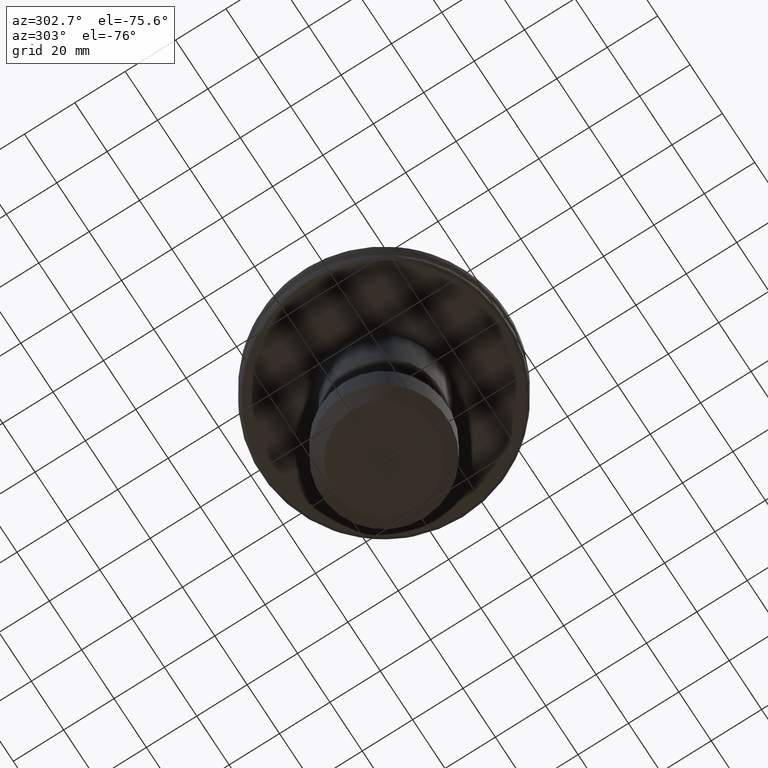
[diagram: clean part render]
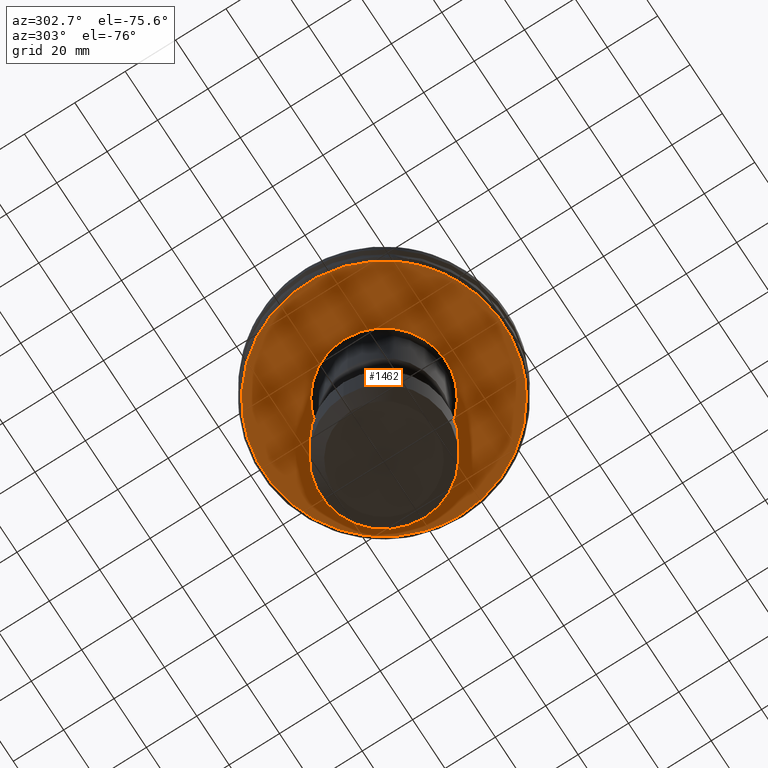
[diagram: same view with one face highlighted and labeled with its STEP entity id]
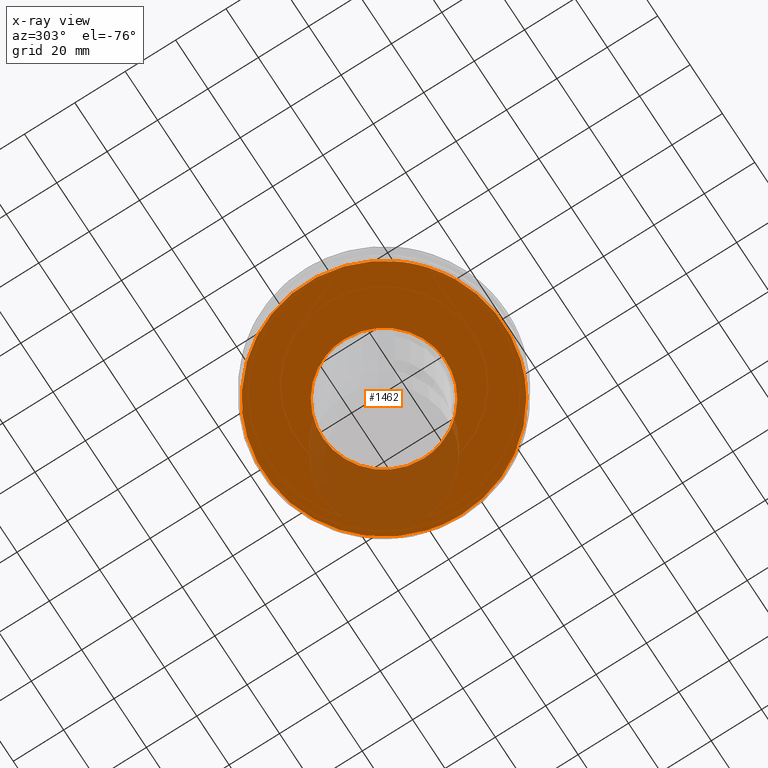
[diagram: x-ray of the same camera — body ghosted, the highlighted face saturated]
A machine part, auxiliary view. The second image highlights one B-rep face of the part: STEP entity #1462.
The next image is the same camera in x-ray: the body ghosted, the highlighted face saturated — about 20% of this face is hidden behind the body in this view.
In plain terms, the highlighted planar face has unit normal (0, 0, -1).
Its self-contained STEP definition (entity closure, byte-faithful):
#2 = CARTESIAN_POINT ( 'NONE',  ( -43.48387235241212100, 19.32416758564961200, -19.10000000000000500 ) ) ;
#25 = CARTESIAN_POINT ( 'NONE',  ( 13.55000000000003800, 45.61430141498812000, -19.10000000000000500 ) ) ;
#29 = CARTESIAN_POINT ( 'NONE',  ( -23.94644880571910800, -5.239225600082368000, -19.10000000000000500 ) ) ;
#47 = B_SPLINE_CURVE_WITH_KNOTS ( 'NONE', 3,
 ( #904, #72, #468, #954, #1856, #189, #2100, #460, #600, #2514, #1832, #132, #96, #139, #1366, #55, #1135, #964, #2860, #3375, #662, #1578, #2874, #1447, #3289, #586, #181, #173, #2288, #2808, #1193, #1045, #414, #403, #2357, #1804, #169, #1239, #1002, #2895, #1468, #1357, #2143, #1958, #1939, #294, #1148, #930, #2820, #50, #1768, #130, #1204, #2220, #2750 ),
 .UNSPECIFIED., .F., .F.,
 ( 4, 1, 1, 1, 1, 1, 2, 2, 1, 1, 1, 1, 2, 2, 1, 1, 1, 2, 2, 2, 1, 1, 1, 1, 2, 2, 1, 1, 1, 1, 2, 2, 1, 1, 1, 1, 1, 2, 2, 4 ),
 ( 0.0000000000000000000, 0.06250000000000587000, 0.09375000000000874300, 0.1093750000000101900, 0.1171875000000109800, 0.1210937500000113100, 0.1230468750000113100, 0.1250000000000113000, 0.1875000000000101300, 0.2187500000000096300, 0.2343750000000094600, 0.2421875000000094100, 0.2460937500000091900, 0.2500000000000089400, 0.3125000000000046600, 0.3437500000000025500, 0.3593750000000016100, 0.3671875000000011100, 0.3750000000000006100, 0.4999999999999935100, 0.5624999999999897900, 0.5937499999999877900, 0.6093749999999870100, 0.6171874999999865700, 0.6210937499999864600, 0.6249999999999864600, 0.6874999999999889000, 0.7187499999999901200, 0.7343749999999907900, 0.7421874999999911200, 0.7460937499999912300, 0.7499999999999913400, 0.8124999999999928900, 0.8437499999999937800, 0.8593749999999942300, 0.8671874999999944500, 0.8710937499999945600, 0.8730468749999946700, 0.8749999999999946700, 1.000000000000000000 ),
 .UNSPECIFIED. ) ;
#50 = CARTESIAN_POINT ( 'NONE',  ( 47.00406100007095500, 7.408562343362993000, -19.09999999999999800 ) ) ;
#55 = CARTESIAN_POINT ( 'NONE',  ( 26.63902506833021600, 39.42887053638094100, -19.10000000000000500 ) ) ;
#56 = CARTESIAN_POINT ( 'NONE',  ( 47.51482365651813900, -3.034128784260997000, -19.10000000000000500 ) ) ;
#57 = CARTESIAN_POINT ( 'NONE',  ( -43.50738066079127000, 19.27117675785837000, -19.10000000000000100 ) ) ;
#70 = CARTESIAN_POINT ( 'NONE',  ( 45.38216414505090100, -14.30848230517556100, -19.10000000000000500 ) ) ;
#72 = CARTESIAN_POINT ( 'NONE',  ( 14.71542401573989700, 45.26810526765248700, -19.09999999999999800 ) ) ;
#78 = CARTESIAN_POINT ( 'NONE',  ( -46.34068544062841300, -10.98879899704573200, -19.10000000000000900 ) ) ;
#85 = CARTESIAN_POINT ( 'NONE',  ( 36.10920679706627100, -31.03933632742731400, -19.10000000000000900 ) ) ;
#86 = CARTESIAN_POINT ( 'NONE',  ( -43.55528312424288400, 19.16266601028311800, -19.10000000000000500 ) ) ;
#93 = CARTESIAN_POINT ( 'NONE',  ( 27.03399514045748100, -39.15911966686011400, -19.10000000000000500 ) ) ;
#94 = CARTESIAN_POINT ( 'NONE',  ( -43.62682564197152100, 18.99978398645598400, -19.10000000000000500 ) ) ;
#96 = CARTESIAN_POINT ( 'NONE',  ( 25.05340298712003400, 40.46362946575666100, -19.10000000000000900 ) ) ;
#104 = CARTESIAN_POINT ( 'NONE',  ( 13.54999999999997600, -45.61430141498813400, -19.10000000000000500 ) ) ;
#113 = CARTESIAN_POINT ( 'NONE',  ( -19.11436798621984700, 43.57650247119016700, -19.10000000000000100 ) ) ;
#130 = CARTESIAN_POINT ( 'NONE',  ( 47.02259631691208600, 7.289981784605238600, -19.10000000000000100 ) ) ;
#132 = CARTESIAN_POINT ( 'NONE',  ( 23.16294830556954000, 41.59993702404469200, -19.10000000000000500 ) ) ;
#139 = CARTESIAN_POINT ( 'NONE',  ( 25.98226908279735200, 39.86687285260243400, -19.10000000000000900 ) ) ;
#147 = CARTESIAN_POINT ( 'NONE',  ( -44.66341859278546200, -16.42788878449738400, -19.10000000000000500 ) ) ;
#152 = CARTESIAN_POINT ( 'NONE',  ( -43.79157994119678000, 18.61891461360969700, -19.10000000000000500 ) ) ;
#164 = CARTESIAN_POINT ( 'NONE',  ( -42.99178721464150500, -20.39579081022644000, -19.10000000000000500 ) ) ;
#165 = EDGE_CURVE ( 'NONE', #2419, #656, #47, .T. ) ;
#169 = CARTESIAN_POINT ( 'NONE',  ( 43.71947824461587800, 18.86371587483209900, -19.10000000000000500 ) ) ;
#173 = CARTESIAN_POINT ( 'NONE',  ( 38.92522104888296000, 27.40123742072935900, -19.10000000000000100 ) ) ;
#181 = CARTESIAN_POINT ( 'NONE',  ( 36.56395844828408300, 30.56583245044275500, -19.10000000000000900 ) ) ;
#189 = CARTESIAN_POINT ( 'NONE',  ( 19.86206875583043500, 43.24125797508322200, -19.10000000000000500 ) ) ;
#199 = CARTESIAN_POINT ( 'NONE',  ( -47.44736947906721300, 3.735930615305174600, -19.10000000000000500 ) ) ;
#209 = CARTESIAN_POINT ( 'NONE',  ( -44.11237557108120900, 17.85393059891838200, -19.10000000000000500 ) ) ;
#214 = B_SPLINE_CURVE_WITH_KNOTS ( 'NONE', 3,
 ( #1791, #2812, #2104, #823, #2716, #2556, #1047, #287, #3116, #3481, #672, #1060, #1761, #1741, #237, #164, #1632, #3021, #147, #3258, #3400, #2202, #958, #78, #639, #397, #1629, #806, #818, #2982, #2008, #624, #1453, #526, #1436, #463, #3147, #199, #3376, #3327, #3269, #3070, #2505, #2301, #2114, #2025, #1552, #1515, #650, #209, #152, #94, #86, #57, #2, #3198, #738, #1485, #2594, #498, #2417, #2169, #1930, #2713, #2542, #1658, #2789, #3405, #3259, #2878, #3161, #2551, #2745, #509, #692, #1180, #2011, #373, #2283, #628, #2547, #912, #2803, #1190, #3066, #1478, #3323, #1756, #113, #2019, #388, #2296, #643, #2554 ),
 .UNSPECIFIED., .F., .F.,
 ( 4, 1, 1, 1, 1, 2, 2, 1, 1, 1, 2, 2, 1, 1, 2, 2, 2, 1, 1, 2, 2, 1, 1, 1, 2, 2, 1, 1, 1, 1, 2, 2, 2, 1, 1, 1, 1, 2, 2, 1, 1, 1, 2, 2, 1, 1, 2, 2, 2, 1, 1, 2, 2, 1, 1, 1, 2, 2, 1, 1, 1, 1, 2, 2, 4 ),
 ( 0.0000000000000000000, 0.03125000000000390000, 0.04687500000000589100, 0.05468750000000689000, 0.05859375000000734100, 0.06054687500000745900, 0.06250000000000757700, 0.09375000000000660600, 0.1093750000000062200, 0.1171875000000060900, 0.1210937500000060200, 0.1250000000000059400, 0.1562500000000048300, 0.1718750000000043000, 0.1796875000000040200, 0.1875000000000038000, 0.2500000000000023900, 0.2812500000000016700, 0.2968750000000012800, 0.3046875000000011700, 0.3125000000000009400, 0.3437500000000002800, 0.3593749999999999400, 0.3671874999999997200, 0.3710937499999996700, 0.3749999999999996100, 0.4062499999999990000, 0.4218749999999987200, 0.4296874999999986100, 0.4335937499999985000, 0.4355468749999984500, 0.4374999999999983900, 0.4999999999999982800, 0.5312499999999982200, 0.5468749999999981100, 0.5546874999999980000, 0.5585937499999980000, 0.5605468749999980000, 0.5624999999999980000, 0.5937499999999982200, 0.6093749999999984500, 0.6171874999999985600, 0.6210937499999985600, 0.6249999999999985600, 0.6562499999999987800, 0.6718749999999987800, 0.6796874999999988900, 0.6874999999999990000, 0.7499999999999990000, 0.7812499999999988900, 0.7968749999999991100, 0.8046874999999991100, 0.8124999999999992200, 0.8437499999999997800, 0.8593750000000001100, 0.8671875000000003300, 0.8710937500000003300, 0.8750000000000003300, 0.9062500000000003300, 0.9218750000000001100, 0.9296875000000001100, 0.9335937500000000000, 0.9355468750000001100, 0.9375000000000001100, 1.000000000000000000 ),
 .UNSPECIFIED. ) ;
#216 = CARTESIAN_POINT ( 'NONE',  ( -13.55000000000003800, -45.61430141498812000, -19.10000000000000500 ) ) ;
#237 = CARTESIAN_POINT ( 'NONE',  ( -42.94043028506779800, -20.50368500784196600, -19.10000000000000500 ) ) ;
#242 = ORIENTED_EDGE ( 'NONE', *, *, #2575, .T. ) ;
#250 = CARTESIAN_POINT ( 'NONE',  ( -10.34886861752274700, -22.21394415825223900, -19.10000000000000500 ) ) ;
#259 = CARTESIAN_POINT ( 'NONE',  ( -24.49999999999999300, 0.0000000000000000000, -19.10000000000000500 ) ) ;
#270 = CARTESIAN_POINT ( 'NONE',  ( -24.49999999999998900, 1.498718135202652400, -19.10000000000000100 ) ) ;
#279 = CARTESIAN_POINT ( 'NONE',  ( -24.36366050873535000, 2.984749729901817500, -19.10000000000000500 ) ) ;
#287 = CARTESIAN_POINT ( 'NONE',  ( -40.18598509482946200, -25.48248467049707200, -19.10000000000000900 ) ) ;
#294 = CARTESIAN_POINT ( 'NONE',  ( 46.64842286615405000, 9.428839320811436100, -19.10000000000000500 ) ) ;
#297 = CARTESIAN_POINT ( 'NONE',  ( -24.20282251513409800, -3.812676422380897500, -19.10000000000000100 ) ) ;
#312 = CARTESIAN_POINT ( 'NONE',  ( -24.14876603715220300, -4.135554191130803600, -19.10000000000000500 ) ) ;
#323 = CARTESIAN_POINT ( 'NONE',  ( 47.18039861107993000, -6.200159950503962000, -19.10000000000000900 ) ) ;
#334 = CARTESIAN_POINT ( 'NONE',  ( 45.31099424279025100, -14.53228453995690300, -19.10000000000000100 ) ) ;
#345 = CARTESIAN_POINT ( 'NONE',  ( 33.74831642311953300, -33.54865932855686600, -19.10000000000000500 ) ) ;
#354 = ORIENTED_EDGE ( 'NONE', *, *, #687, .T. ) ;
#360 = CARTESIAN_POINT ( 'NONE',  ( 25.85766165867145400, -39.96557434563455800, -19.10000000000000100 ) ) ;
#370 = CIRCLE ( 'NONE', #1344, 47.58431457505076200 ) ;
#373 = CARTESIAN_POINT ( 'NONE',  ( -26.99362684486938600, 39.20863816776965600, -19.10000000000000100 ) ) ;
#388 = CARTESIAN_POINT ( 'NONE',  ( -18.94627407736265900, 43.64984701757386200, -19.10000000000000100 ) ) ;
#397 = CARTESIAN_POINT ( 'NONE',  ( -47.14367306040028200, -6.593500366467049300, -19.10000000000000900 ) ) ;
#403 = CARTESIAN_POINT ( 'NONE',  ( 42.23167771956183000, 21.92622009205994300, -19.10000000000000500 ) ) ;
#414 = CARTESIAN_POINT ( 'NONE',  ( 42.15563262230364200, 22.07208034063000200, -19.10000000000000100 ) ) ;
#460 = CARTESIAN_POINT ( 'NONE',  ( 20.20639356877728300, 43.08097109733492400, -19.10000000000000100 ) ) ;
#463 = CARTESIAN_POINT ( 'NONE',  ( -47.51765271232239500, 2.520872981501844000, -19.10000000000000900 ) ) ;
#468 = CARTESIAN_POINT ( 'NONE',  ( 16.43872634132790400, 44.68369591768216500, -19.10000000000000100 ) ) ;
#485 = CARTESIAN_POINT ( 'NONE',  ( -16.55021976316358600, -44.72306825938161300, -19.10000000000000100 ) ) ;
#498 = CARTESIAN_POINT ( 'NONE',  ( -41.01970147038595400, 24.11775541773290100, -19.10000000000000500 ) ) ;
#502 = CIRCLE ( 'NONE', #1887, 47.58431457505076200 ) ;
#509 = CARTESIAN_POINT ( 'NONE',  ( -29.75607469811446000, 37.13363235652707300, -19.10000000000000500 ) ) ;
#511 = EDGE_CURVE ( 'NONE', #3299, #3022, #2258, .T. ) ;
#516 = CARTESIAN_POINT ( 'NONE',  ( -18.51981802162262600, -16.12836169545639500, -19.10000000000000500 ) ) ;
#526 = CARTESIAN_POINT ( 'NONE',  ( -47.54727111532495300, 1.905664479508390600, -19.10000000000000500 ) ) ;
#565 = CARTESIAN_POINT ( 'NONE',  ( 47.58431457505076200, -1.215756928426639400, -19.10000000000000500 ) ) ;
#585 = CARTESIAN_POINT ( 'NONE',  ( 47.06829021516596600, -6.989508869546775700, -19.10000000000000100 ) ) ;
#586 = CARTESIAN_POINT ( 'NONE',  ( 34.82602765833826200, 32.53223893888006300, -19.10000000000000500 ) ) ;
#598 = CARTESIAN_POINT ( 'NONE',  ( 44.21619689616473900, -17.66806265517536900, -19.10000000000000500 ) ) ;
#600 = CARTESIAN_POINT ( 'NONE',  ( 20.27515829117931600, 43.04865088728034600, -19.10000000000000500 ) ) ;
#612 = CARTESIAN_POINT ( 'NONE',  ( 33.16242677107062100, -34.12517462230240300, -19.10000000000000500 ) ) ;
#622 = CARTESIAN_POINT ( 'NONE',  ( 22.32197853625901700, -42.03222146238771000, -19.10000000000000500 ) ) ;
#624 = CARTESIAN_POINT ( 'NONE',  ( -47.59741484154227500, -0.6777149945187424000, -19.10000000000000500 ) ) ;
#628 = CARTESIAN_POINT ( 'NONE',  ( -24.81728438537126600, 40.60144016359124200, -19.10000000000000100 ) ) ;
#631 = CARTESIAN_POINT ( 'NONE',  ( -24.49999999999999300, 0.0000000000000000000, -19.10000000000000500 ) ) ;
#639 = CARTESIAN_POINT ( 'NONE',  ( -46.90680541812257300, -8.062666715548266100, -19.10000000000000100 ) ) ;
#643 = CARTESIAN_POINT ( 'NONE',  ( -15.36949559218750100, 45.07380940898668300, -19.09999999999999800 ) ) ;
#650 = CARTESIAN_POINT ( 'NONE',  ( -44.71911495658567000, 16.31098149354083700, -19.10000000000000900 ) ) ;
#656 = VERTEX_POINT ( 'NONE', #2928 ) ;
#662 = CARTESIAN_POINT ( 'NONE',  ( 31.25572989640332400, 35.89007667594343300, -19.10000000000000500 ) ) ;
#672 = CARTESIAN_POINT ( 'NONE',  ( -41.50477632034818500, -23.30825446987417500, -19.10000000000000900 ) ) ;
#687 = EDGE_CURVE ( 'NONE', #3022, #3299, #1288, .T. ) ;
#692 = CARTESIAN_POINT ( 'NONE',  ( -29.36703163552002500, 37.44204003263730800, -19.09999999999999800 ) ) ;
#738 = CARTESIAN_POINT ( 'NONE',  ( -42.43145287623053000, 21.57528657157387300, -19.10000000000000900 ) ) ;
#741 = CIRCLE ( 'NONE', #1549, 47.58431457505076200 ) ;
#774 = CARTESIAN_POINT ( 'NONE',  ( -36.93598507658065000, -30.00000000000000000, -19.10000000000000500 ) ) ;
#806 = CARTESIAN_POINT ( 'NONE',  ( -47.40564946809689700, -4.127351685709132100, -19.10000000000000500 ) ) ;
#818 = CARTESIAN_POINT ( 'NONE',  ( -47.44611172679827900, -3.632546062404991000, -19.09999999999999800 ) ) ;
#823 = CARTESIAN_POINT ( 'NONE',  ( -39.34331436813991400, -26.77251847619548300, -19.10000000000000500 ) ) ;
#860 = CARTESIAN_POINT ( 'NONE',  ( -14.62150524204846400, -19.66681824927509600, -19.10000000000000500 ) ) ;
#864 = CARTESIAN_POINT ( 'NONE',  ( 47.03992380506183200, -7.177322297440842800, -19.10000000000000900 ) ) ;
#879 = CARTESIAN_POINT ( 'NONE',  ( 42.81655896320034300, -20.76531420089565200, -19.10000000000000500 ) ) ;
#881 = DIRECTION ( 'NONE',  ( 1.000000000000000000, 0.0000000000000000000, 0.0000000000000000000 ) ) ;
#888 = CARTESIAN_POINT ( 'NONE',  ( 32.98419360929887000, -34.29747021916411100, -19.10000000000000500 ) ) ;
#889 = DIRECTION ( 'NONE',  ( -0.0000000000000000000, -0.0000000000000000000, 1.000000000000000000 ) ) ;
#893 = CARTESIAN_POINT ( 'NONE',  ( 0.0000000000000000000, 0.0000000000000000000, -19.10000000000000500 ) ) ;
#900 = CARTESIAN_POINT ( 'NONE',  ( 20.84251516369964500, -42.77734476561543200, -19.10000000000000100 ) ) ;
#904 = CARTESIAN_POINT ( 'NONE',  ( 13.55000000000003800, 45.61430141498812000, -19.10000000000000500 ) ) ;
#912 = CARTESIAN_POINT ( 'NONE',  ( -24.28919228007484000, 40.91842199131193800, -19.10000000000000900 ) ) ;
#930 = CARTESIAN_POINT ( 'NONE',  ( 46.94140912373022400, 7.798446834090934300, -19.10000000000000500 ) ) ;
#954 = CARTESIAN_POINT ( 'NONE',  ( 18.40578674964244500, 43.88793353369149500, -19.10000000000000500 ) ) ;
#958 = CARTESIAN_POINT ( 'NONE',  ( -45.84282519669615400, -12.90938794965166600, -19.10000000000000900 ) ) ;
#964 = CARTESIAN_POINT ( 'NONE',  ( 26.83329560689306700, 39.29691769202159400, -19.10000000000000100 ) ) ;
#977 = CARTESIAN_POINT ( 'NONE',  ( -9.210432622246452500, -22.70288077945793100, -19.10000000000000500 ) ) ;
#978 = CARTESIAN_POINT ( 'NONE',  ( -24.10785753257110300, -4.365973444442893500, -19.10000000000000900 ) ) ;
#1002 = CARTESIAN_POINT ( 'NONE',  ( 44.92651047931749300, 15.68644869614217700, -19.10000000000000500 ) ) ;
#1045 = CARTESIAN_POINT ( 'NONE',  ( 42.04102447211556600, 22.29053195246092800, -19.10000000000000500 ) ) ;
#1047 = CARTESIAN_POINT ( 'NONE',  ( -40.12234574621437800, -25.58256864374900600, -19.09999999999999800 ) ) ;
#1051 = CARTESIAN_POINT ( 'NONE',  ( -23.25935625704301700, -7.715939430160037900, -19.10000000000000500 ) ) ;
#1060 = CARTESIAN_POINT ( 'NONE',  ( -42.29725858584544100, -21.80883355815721800, -19.10000000000000500 ) ) ;
#1070 = CARTESIAN_POINT ( 'NONE',  ( -14.02009449773791700, -20.09398675715818400, -19.10000000000000500 ) ) ;
#1095 = B_SPLINE_CURVE_WITH_KNOTS ( 'NONE', 3,
 ( #1416, #565, #56, #1968, #323, #2237, #585, #2504, #864, #2760, #1145, #3027, #1429, #3275, #1707, #70, #1976, #334, #2252, #598, #2513, #879, #2775, #1154, #3037, #1446, #3287, #1717, #85, #1990, #345, #2263, #612, #2523, #888, #2788, #1170, #3046, #1455, #3300, #1728, #93, #2006, #360, #2271, #622, #2537, #900, #2796, #1186, #3054, #1467, #3317, #1744, #104 ),
 .UNSPECIFIED., .F., .F.,
 ( 4, 1, 1, 1, 1, 1, 2, 2, 1, 1, 1, 1, 2, 2, 1, 1, 1, 2, 2, 2, 1, 1, 1, 1, 2, 2, 1, 1, 1, 1, 2, 2, 1, 1, 1, 1, 1, 2, 2, 4 ),
 ( 0.0000000000000000000, 0.06250000000000127700, 0.09375000000000197100, 0.1093750000000023200, 0.1171875000000025100, 0.1210937500000026000, 0.1230468750000026200, 0.1250000000000026400, 0.1875000000000029700, 0.2187500000000031400, 0.2343750000000032200, 0.2421875000000033000, 0.2460937500000033000, 0.2500000000000032800, 0.3125000000000034400, 0.3437500000000035500, 0.3593750000000036100, 0.3671875000000036600, 0.3750000000000037200, 0.5000000000000026600, 0.5625000000000022200, 0.5937500000000020000, 0.6093750000000020000, 0.6171875000000018900, 0.6210937500000017800, 0.6250000000000017800, 0.6874999999999991100, 0.7187499999999977800, 0.7343749999999971100, 0.7421874999999968900, 0.7460937499999966700, 0.7499999999999965600, 0.8124999999999922300, 0.8437499999999901200, 0.8593749999999890100, 0.8671874999999885600, 0.8710937499999883400, 0.8730468749999884500, 0.8749999999999884500, 1.000000000000000000 ),
 .UNSPECIFIED. ) ;
#1135 = CARTESIAN_POINT ( 'NONE',  ( 26.76977245758198300, 39.34021449235767400, -19.10000000000000500 ) ) ;
#1145 = CARTESIAN_POINT ( 'NONE',  ( 46.83576360696253000, -8.501588316288094300, -19.10000000000000500 ) ) ;
#1148 = CARTESIAN_POINT ( 'NONE',  ( 46.84908902927109200, 8.343185694198989900, -19.10000000000000500 ) ) ;
#1154 = CARTESIAN_POINT ( 'NONE',  ( 42.45501299876879400, -21.49105359667803200, -19.10000000000000500 ) ) ;
#1170 = CARTESIAN_POINT ( 'NONE',  ( 30.53220719722037700, -36.53788278290467400, -19.10000000000000500 ) ) ;
#1180 = CARTESIAN_POINT ( 'NONE',  ( -29.16962769364991100, 37.59601427558866500, -19.10000000000000100 ) ) ;
#1186 = CARTESIAN_POINT ( 'NONE',  ( 20.48661267979564500, -42.94842543565332700, -19.10000000000000100 ) ) ;
#1190 = CARTESIAN_POINT ( 'NONE',  ( -23.23964798971194400, 41.53466996812022000, -19.10000000000000900 ) ) ;
#1193 = CARTESIAN_POINT ( 'NONE',  ( 41.76982192490442700, 22.79788105289732400, -19.10000000000000900 ) ) ;
#1199 = CARTESIAN_POINT ( 'NONE',  ( -24.08672091710404900, 4.481115800569359200, -19.10000000000000900 ) ) ;
#1204 = CARTESIAN_POINT ( 'NONE',  ( 47.39900545896375700, 4.849328732738546100, -19.10000000000001200 ) ) ;
#1225 = ORIENTED_EDGE ( 'NONE', *, *, #2367, .F. ) ;
#1234 = CARTESIAN_POINT ( 'NONE',  ( 4.433684446098243200, -24.09549817372119700, -19.10000000000000500 ) ) ;
#1239 = CARTESIAN_POINT ( 'NONE',  ( 44.54555233085104500, 16.75446385730817100, -19.10000000000000100 ) ) ;
#1255 = ORIENTED_EDGE ( 'NONE', *, *, #165, .T. ) ;
#1288 = B_SPLINE_CURVE_WITH_KNOTS ( 'NONE', 3,
 ( #1740, #1735, #2672, #2668, #2658, #2645, #2641, #2639, #2882, #2880, #2875, #1776, #1773, #1765, #3348, #2933, #3453, #2715, #2710, #2706, #2794, #2737, #2722, #3356, #3360, #3336, #1875, #1871, #1865, #2991, #3095, #3008, #3114, #3459, #3426, #3025, #2958, #3040, #2481, #2475, #2471, #2509, #2497, #2488, #3437, #3448, #3128, #3399, #3107, #3036, #1583, #1579, #1576, #2221, #2212, #2205, #2197, #2191, #2185, #2385, #2375, #2370, #2397, #2392, #2389, #2284, #2277, #2269, #2267, #2261, #2256, #2332, #2326, #2313, #2350, #2348, #2340, #1905, #1901, #1894, #1953, #1949, #1932, #2118, #2113, #2108, #2010, #2003, #1998, #2081, #2074, #2057, #2182, #2175, #2152, #2363, #2360, #2358, #2248, #2234, #2228, #2305, #2297, #2292, #1199, #279, #270, #259 ),
 .UNSPECIFIED., .F., .F.,
 ( 4, 1, 1, 1, 1, 1, 2, 2, 1, 1, 1, 1, 2, 2, 1, 1, 1, 2, 2, 2, 1, 1, 1, 1, 2, 2, 1, 1, 1, 1, 2, 2, 1, 1, 1, 1, 1, 2, 2, 2, 1, 1, 1, 1, 1, 2, 2, 1, 1, 1, 1, 2, 2, 1, 1, 1, 2, 2, 2, 1, 1, 1, 1, 2, 2, 1, 1, 1, 1, 2, 2, 1, 1, 1, 1, 1, 2, 2, 4 ),
 ( 0.0000000000000000000, 0.03124999999999946600, 0.04687499999999920200, 0.05468749999999907700, 0.05859374999999901500, 0.06054687499999900800, 0.06152343749999902200, 0.06249999999999904200, 0.09374999999999850100, 0.1093749999999982700, 0.1171874999999981300, 0.1210937499999980400, 0.1230468749999979700, 0.1249999999999979200, 0.1562499999999977200, 0.1718749999999976400, 0.1796874999999976400, 0.1835937499999976100, 0.1874999999999975600, 0.2499999999999966700, 0.2812499999999961700, 0.2968749999999959500, 0.3046874999999957300, 0.3085937499999956100, 0.3105468749999955000, 0.3124999999999954500, 0.3437499999999945000, 0.3593749999999940000, 0.3671874999999937300, 0.3710937499999936200, 0.3730468749999935100, 0.3749999999999934500, 0.4062499999999919500, 0.4218749999999912300, 0.4296874999999909000, 0.4335937499999906700, 0.4355468749999906200, 0.4365234374999905600, 0.4374999999999904500, 0.4999999999999879500, 0.5312499999999866800, 0.5468749999999861200, 0.5546874999999857900, 0.5585937499999855700, 0.5605468749999855700, 0.5615234374999855700, 0.5624999999999854600, 0.5937499999999847900, 0.6093749999999843500, 0.6171874999999842300, 0.6210937499999841200, 0.6230468749999842300, 0.6249999999999843500, 0.6562499999999854600, 0.6718749999999861200, 0.6796874999999863400, 0.6835937499999865700, 0.6874999999999866800, 0.7499999999999886800, 0.7812499999999897900, 0.7968749999999902300, 0.8046874999999905600, 0.8085937499999906700, 0.8105468749999906700, 0.8124999999999906700, 0.8437499999999911200, 0.8593749999999913400, 0.8671874999999913400, 0.8710937499999914500, 0.8730468749999915600, 0.8749999999999915600, 0.9062499999999935600, 0.9218749999999946700, 0.9296874999999952300, 0.9335937499999954500, 0.9355468749999955600, 0.9365234374999956700, 0.9374999999999957800, 1.000000000000000000 ),
 .UNSPECIFIED. ) ;
#1313 = CARTESIAN_POINT ( 'NONE',  ( -24.97134317639638800, -40.62632225824804500, -19.10000000000000500 ) ) ;
#1331 = CARTESIAN_POINT ( 'NONE',  ( -22.90576902360865600, -8.694455448610868900, -19.09999999999999800 ) ) ;
#1344 = AXIS2_PLACEMENT_3D ( 'NONE', #2782, #3168, #2837 ) ;
#1351 = CARTESIAN_POINT ( 'NONE',  ( 0.0000000000000000000, 0.0000000000000000000, -19.10000000000000500 ) ) ;
#1354 = ORIENTED_EDGE ( 'NONE', *, *, #2226, .F. ) ;
#1357 = CARTESIAN_POINT ( 'NONE',  ( 45.23605185881285000, 14.76391406654777100, -19.10000000000000900 ) ) ;
#1366 = CARTESIAN_POINT ( 'NONE',  ( 26.44261181936152400, 39.56134383752278400, -19.10000000000000900 ) ) ;
#1380 = CARTESIAN_POINT ( 'NONE',  ( -24.49999999999999300, 0.0000000000000000000, -19.10000000000000500 ) ) ;
#1400 = EDGE_LOOP ( 'NONE', ( #2694, #354 ) ) ;
#1414 = CARTESIAN_POINT ( 'NONE',  ( -24.12033978579967900, -4.296866634587068700, -19.10000000000000900 ) ) ;
#1416 = CARTESIAN_POINT ( 'NONE',  ( 47.58431457505076200, 0.0000000000000000000, -19.10000000000000500 ) ) ;
#1429 = CARTESIAN_POINT ( 'NONE',  ( 45.92256546688791000, -12.49385015583332100, -19.10000000000000500 ) ) ;
#1436 = CARTESIAN_POINT ( 'NONE',  ( -47.53007346013648500, 2.274785748779014400, -19.10000000000000900 ) ) ;
#1446 = CARTESIAN_POINT ( 'NONE',  ( 41.10236839390098100, -24.12040806554618700, -19.10000000000000500 ) ) ;
#1447 = CARTESIAN_POINT ( 'NONE',  ( 32.69070567706877000, 34.57761234897954900, -19.10000000000000100 ) ) ;
#1453 = CARTESIAN_POINT ( 'NONE',  ( -47.57736471170250100, 1.044448576572247500, -19.10000000000000100 ) ) ;
#1455 = CARTESIAN_POINT ( 'NONE',  ( 27.83019210807080400, -38.59969460726077300, -19.10000000000000500 ) ) ;
#1462 = ADVANCED_FACE ( 'NONE', ( #2570, #2899 ), #3460, .T. ) ;
#1467 = CARTESIAN_POINT ( 'NONE',  ( 20.37821948653847300, -42.99996010883735000, -19.10000000000000500 ) ) ;
#1468 = CARTESIAN_POINT ( 'NONE',  ( 45.18544818220468800, 14.91808160771482200, -19.10000000000000500 ) ) ;
#1478 = CARTESIAN_POINT ( 'NONE',  ( -20.43954638188099400, 42.97566936953406700, -19.10000000000000500 ) ) ;
#1485 = CARTESIAN_POINT ( 'NONE',  ( -41.62449277410392800, 23.06696569431760900, -19.10000000000000500 ) ) ;
#1515 = CARTESIAN_POINT ( 'NONE',  ( -45.17943121685046000, 14.96620041579737900, -19.10000000000000100 ) ) ;
#1549 = AXIS2_PLACEMENT_3D ( 'NONE', #893, #889, #881 ) ;
#1552 = CARTESIAN_POINT ( 'NONE',  ( -46.02040231049004900, 12.24696722946500500, -19.10000000000000500 ) ) ;
#1568 = CARTESIAN_POINT ( 'NONE',  ( 24.49999999999999300, -1.498718135192927100, -19.10000000000000500 ) ) ;
#1573 = CARTESIAN_POINT ( 'NONE',  ( 24.49999999999999300, 3.000384657911015100E-015, -19.10000000000000500 ) ) ;
#1576 = CARTESIAN_POINT ( 'NONE',  ( 2.984925040290548700, 24.36362806320720200, -19.10000000000000500 ) ) ;
#1578 = CARTESIAN_POINT ( 'NONE',  ( 32.09796523347117900, 35.13085002077772100, -19.10000000000000500 ) ) ;
#1579 = CARTESIAN_POINT ( 'NONE',  ( 4.481113061344538900, 24.08672142406542700, -19.10000000000000100 ) ) ;
#1580 = CARTESIAN_POINT ( 'NONE',  ( -30.00000000000000700, -36.93598507658064300, -19.10000000000000500 ) ) ;
#1583 = CARTESIAN_POINT ( 'NONE',  ( 4.506926015179759700, 24.08190607817292100, -19.10000000000000100 ) ) ;
#1593 = CARTESIAN_POINT ( 'NONE',  ( -22.81623427014685000, -8.925911138569556900, -19.10000000000000500 ) ) ;
#1600 = CARTESIAN_POINT ( 'NONE',  ( -21.96245251861074600, -10.91373581647802600, -19.09999999999999800 ) ) ;
#1605 = CARTESIAN_POINT ( 'NONE',  ( -22.85222159802659900, -8.833378299810984700, -19.10000000000000500 ) ) ;
#1615 = CARTESIAN_POINT ( 'NONE',  ( -21.26689598979296700, -12.17692472716941200, -19.10000000000000500 ) ) ;
#1616 = CARTESIAN_POINT ( 'NONE',  ( 24.08190607817301300, -4.506926015179507400, -19.10000000000000100 ) ) ;
#1620 = CARTESIAN_POINT ( 'NONE',  ( -7.155728036119633400, -23.45545526423321500, -19.10000000000000500 ) ) ;
#1621 = DIRECTION ( 'NONE',  ( 1.000000000000000000, 0.0000000000000000000, 0.0000000000000000000 ) ) ;
#1626 = CARTESIAN_POINT ( 'NONE',  ( 24.08672091710404600, -4.481115800569509300, -19.10000000000000500 ) ) ;
#1629 = CARTESIAN_POINT ( 'NONE',  ( -47.33918203673612600, -4.868797594623780300, -19.10000000000000500 ) ) ;
#1631 = CARTESIAN_POINT ( 'NONE',  ( 24.36366050873535700, -2.984749729892087100, -19.10000000000000500 ) ) ;
#1632 = CARTESIAN_POINT ( 'NONE',  ( -43.46452045536236900, -19.39265620138312200, -19.10000000000000900 ) ) ;
#1648 = VERTEX_POINT ( 'NONE', #3076 ) ;
#1658 = CARTESIAN_POINT ( 'NONE',  ( -38.02059330657994000, 28.61405399308351200, -19.10000000000000500 ) ) ;
#1664 = CARTESIAN_POINT ( 'NONE',  ( -24.09549817372128200, -4.433684446098018500, -19.10000000000000500 ) ) ;
#1669 = CARTESIAN_POINT ( 'NONE',  ( 20.39001067731888700, -13.58309494029310100, -19.10000000000000500 ) ) ;
#1673 = CARTESIAN_POINT ( 'NONE',  ( 20.44839809984040700, -13.49502826333986500, -19.10000000000000900 ) ) ;
#1682 = CARTESIAN_POINT ( 'NONE',  ( 20.47807936052113900, -13.44994003914511900, -19.10000000000000500 ) ) ;
#1707 = CARTESIAN_POINT ( 'NONE',  ( 45.45322280364973000, -14.08247786513390800, -19.10000000000000900 ) ) ;
#1710 = CARTESIAN_POINT ( 'NONE',  ( -8.279712299622909600, -23.07223958713331800, -19.10000000000000900 ) ) ;
#1717 = CARTESIAN_POINT ( 'NONE',  ( 37.35106965272741100, -29.51098510196290900, -19.10000000000000100 ) ) ;
#1728 = CARTESIAN_POINT ( 'NONE',  ( 27.16737028582480600, -39.06671061190463900, -19.10000000000000900 ) ) ;
#1735 = CARTESIAN_POINT ( 'NONE',  ( 24.50000000000000400, 0.7491812973786200500, -19.10000000000000500 ) ) ;
#1740 = CARTESIAN_POINT ( 'NONE',  ( 24.49999999999999300, 3.000384657911015100E-015, -19.10000000000000500 ) ) ;
#1741 = CARTESIAN_POINT ( 'NONE',  ( -42.83533062590130700, -20.72236678758660100, -19.10000000000000500 ) ) ;
#1742 = EDGE_LOOP ( 'NONE', ( #1354, #1255, #3048, #1225, #3340, #3160, #242 ) ) ;
#1744 = CARTESIAN_POINT ( 'NONE',  ( 15.88117119200014000, -44.92181312355893400, -19.10000000000001200 ) ) ;
#1750 = CARTESIAN_POINT ( 'NONE',  ( -4.506926015180309400, -24.08190607817270400, -19.10000000000000900 ) ) ;
#1752 = VERTEX_POINT ( 'NONE', #2021 ) ;
#1756 = CARTESIAN_POINT ( 'NONE',  ( -19.28098364272332400, 43.50329362517733500, -19.10000000000000900 ) ) ;
#1757 = CARTESIAN_POINT ( 'NONE',  ( 6.395101912079400800, -23.67415324658683700, -19.10000000000000100 ) ) ;
#1761 = CARTESIAN_POINT ( 'NONE',  ( -42.67646432319446600, -21.04971763835008500, -19.10000000000000500 ) ) ;
#1762 = CARTESIAN_POINT ( 'NONE',  ( 4.365962704015927900, -24.10785951987329800, -19.10000000000000100 ) ) ;
#1765 = CARTESIAN_POINT ( 'NONE',  ( 23.02767805297227400, 8.369436977704019400, -19.10000000000000100 ) ) ;
#1768 = CARTESIAN_POINT ( 'NONE',  ( 47.01629565795806100, 7.330514881585432200, -19.10000000000000500 ) ) ;
#1773 = CARTESIAN_POINT ( 'NONE',  ( 23.25935625704586900, 7.715939430152819700, -19.10000000000000500 ) ) ;
#1776 = CARTESIAN_POINT ( 'NONE',  ( 23.67415324658564700, 6.395101912082403800, -19.10000000000000900 ) ) ;
#1791 = CARTESIAN_POINT ( 'NONE',  ( -36.93598507658065000, -30.00000000000000000, -19.10000000000000500 ) ) ;
#1804 = CARTESIAN_POINT ( 'NONE',  ( 42.90142996046747500, 20.62574051018165400, -19.10000000000000900 ) ) ;
#1821 = CARTESIAN_POINT ( 'NONE',  ( 13.23305766389402300, -20.61909307389059300, -19.10000000000000100 ) ) ;
#1825 = CARTESIAN_POINT ( 'NONE',  ( 14.82203099768611500, -19.58108093208026200, -19.10000000000000900 ) ) ;
#1832 = CARTESIAN_POINT ( 'NONE',  ( 21.48646288104771800, 42.47584807168517800, -19.10000000000000500 ) ) ;
#1835 = CARTESIAN_POINT ( 'NONE',  ( 13.31817695545159600, -20.56422184315549400, -19.09999999999999800 ) ) ;
#1850 = CARTESIAN_POINT ( 'NONE',  ( 22.74156407013894600, -9.114489498752625700, -19.10000000000000500 ) ) ;
#1855 = CARTESIAN_POINT ( 'NONE',  ( 22.76153673783523200, -9.064483389556876600, -19.10000000000000500 ) ) ;
#1856 = CARTESIAN_POINT ( 'NONE',  ( 19.37845221091519900, 43.46156447277313400, -19.10000000000000100 ) ) ;
#1858 = CARTESIAN_POINT ( 'NONE',  ( 23.07223958713844800, -8.279712299609961700, -19.10000000000000500 ) ) ;
#1865 = CARTESIAN_POINT ( 'NONE',  ( 15.78819234417417400, 18.76818551297248000, -19.10000000000000900 ) ) ;
#1871 = CARTESIAN_POINT ( 'NONE',  ( 16.72626519778216900, 17.92199336088682700, -19.10000000000000100 ) ) ;
#1875 = CARTESIAN_POINT ( 'NONE',  ( 18.51981802164691300, 16.12836169543756500, -19.10000000000001200 ) ) ;
#1887 = AXIS2_PLACEMENT_3D ( 'NONE', #1351, #3200, #1621 ) ;
#1892 = CARTESIAN_POINT ( 'NONE',  ( -20.73005640588600300, -13.05857972663815200, -19.10000000000000500 ) ) ;
#1894 = CARTESIAN_POINT ( 'NONE',  ( -16.12836169546278600, 18.51981802159989200, -19.10000000000000500 ) ) ;
#1901 = CARTESIAN_POINT ( 'NONE',  ( -14.82203099765148500, 19.58108093209854100, -19.10000000000000100 ) ) ;
#1905 = CARTESIAN_POINT ( 'NONE',  ( -13.31817695545376300, 20.56422184315437100, -19.10000000000000900 ) ) ;
#1930 = CARTESIAN_POINT ( 'NONE',  ( -40.26320961462813100, 25.37939330419265400, -19.10000000000000900 ) ) ;
#1932 = CARTESIAN_POINT ( 'NONE',  ( -19.66681824927091100, 14.62150524206337300, -19.10000000000000500 ) ) ;
#1939 = CARTESIAN_POINT ( 'NONE',  ( 46.18298664312511200, 11.58485019962163100, -19.10000000000000500 ) ) ;
#1949 = CARTESIAN_POINT ( 'NONE',  ( -18.76818551295039600, 15.78819234421531300, -19.10000000000000900 ) ) ;
#1953 = CARTESIAN_POINT ( 'NONE',  ( -17.92199336087422200, 16.72626519780567400, -19.10000000000000500 ) ) ;
#1958 = CARTESIAN_POINT ( 'NONE',  ( 45.67414891459476700, 13.40663716817661600, -19.10000000000000500 ) ) ;
#1961 = CARTESIAN_POINT ( 'NONE',  ( 23.45545526424218300, -7.155728036096989300, -19.10000000000000500 ) ) ;
#1966 = CARTESIAN_POINT ( 'NONE',  ( 23.80554885163388700, -5.816286823072585900, -19.10000000000000500 ) ) ;
#1968 = CARTESIAN_POINT ( 'NONE',  ( 47.31214181079801100, -5.146351426657937500, -19.10000000000000500 ) ) ;
#1972 = CARTESIAN_POINT ( 'NONE',  ( 23.95634780302242500, -5.139534656828898200, -19.10000000000000100 ) ) ;
#1974 = CARTESIAN_POINT ( 'NONE',  ( 24.02568531813985000, -4.799400683774178900, -19.10000000000000500 ) ) ;
#1976 = CARTESIAN_POINT ( 'NONE',  ( 45.33440982915567500, -14.45906218181544600, -19.10000000000000900 ) ) ;
#1984 = CARTESIAN_POINT ( 'NONE',  ( 24.05883858555435500, -4.628894224763604000, -19.10000000000000500 ) ) ;
#1987 = CARTESIAN_POINT ( 'NONE',  ( 24.07272238084396300, -4.555725855369810300, -19.10000000000000500 ) ) ;
#1990 = CARTESIAN_POINT ( 'NONE',  ( 34.55314944077223800, -32.72796038945971700, -19.10000000000000900 ) ) ;
#1995 = CARTESIAN_POINT ( 'NONE',  ( -5.139534656838799600, -23.95634780301850200, -19.10000000000000500 ) ) ;
#1998 = CARTESIAN_POINT ( 'NONE',  ( -20.95936065423813600, 12.71382165857249700, -19.10000000000000100 ) ) ;
#2003 = CARTESIAN_POINT ( 'NONE',  ( -20.47807936052063500, 13.44994003914621000, -19.10000000000000500 ) ) ;
#2006 = CARTESIAN_POINT ( 'NONE',  ( 26.96538805818462900, -39.20638976705435400, -19.09999999999999800 ) ) ;
#2008 = CARTESIAN_POINT ( 'NONE',  ( -47.54579427354998000, -2.153395367257377600, -19.10000000000000100 ) ) ;
#2010 = CARTESIAN_POINT ( 'NONE',  ( -20.44839809983967500, 13.49502826334158500, -19.09999999999999800 ) ) ;
#2011 = CARTESIAN_POINT ( 'NONE',  ( -28.19223015311877800, 38.34628826502011400, -19.10000000000000900 ) ) ;
#2012 = CARTESIAN_POINT ( 'NONE',  ( 16.12836169545119300, -18.51981802162783800, -19.10000000000000500 ) ) ;
#2019 = CARTESIAN_POINT ( 'NONE',  ( -19.00318548247783600, 43.62510207827961000, -19.10000000000000500 ) ) ;
#2020 = CARTESIAN_POINT ( 'NONE',  ( 17.92199336088001600, -16.72626519779171200, -19.10000000000001200 ) ) ;
#2021 = CARTESIAN_POINT ( 'NONE',  ( -30.00000000000000700, -36.93598507658064300, -19.10000000000000500 ) ) ;
#2025 = CARTESIAN_POINT ( 'NONE',  ( -46.47129717731547800, 10.40616371175268600, -19.10000000000000500 ) ) ;
#2031 = CARTESIAN_POINT ( 'NONE',  ( 18.76818551296053900, -15.78819234419087000, -19.10000000000000500 ) ) ;
#2035 = CARTESIAN_POINT ( 'NONE',  ( 19.66681824927851700, -14.62150524204505200, -19.10000000000000900 ) ) ;
#2044 = CARTESIAN_POINT ( 'NONE',  ( 20.09398675716017400, -14.02009449773592600, -19.10000000000000500 ) ) ;
#2049 = CARTESIAN_POINT ( 'NONE',  ( 20.30203404603168900, -13.71487232727230500, -19.10000000000000900 ) ) ;
#2057 = CARTESIAN_POINT ( 'NONE',  ( -22.50497981656325000, 9.687812999428631500, -19.10000000000000900 ) ) ;
#2061 = CARTESIAN_POINT ( 'NONE',  ( -9.687812999444574300, -22.50497981655600200, -19.10000000000000900 ) ) ;
#2074 = CARTESIAN_POINT ( 'NONE',  ( -22.21394415826466700, 10.34886861749542500, -19.10000000000001200 ) ) ;
#2081 = CARTESIAN_POINT ( 'NONE',  ( -21.58326654517060200, 11.64566886234111600, -19.10000000000000900 ) ) ;
#2092 = CARTESIAN_POINT ( 'NONE',  ( 12.17692472717388200, -21.26689598979119800, -19.10000000000000500 ) ) ;
#2095 = CARTESIAN_POINT ( 'NONE',  ( 12.79596617754590700, -20.89476168683871300, -19.10000000000000500 ) ) ;
#2097 = CARTESIAN_POINT ( 'NONE',  ( 13.05857972663971700, -20.73005640588537400, -19.09999999999999800 ) ) ;
#2099 = CARTESIAN_POINT ( 'NONE',  ( 8.925911138568670500, -22.81623427014720200, -19.10000000000000500 ) ) ;
#2100 = CARTESIAN_POINT ( 'NONE',  ( 20.10319798185777200, 43.12932423443057700, -19.10000000000000500 ) ) ;
#2101 = CARTESIAN_POINT ( 'NONE',  ( 9.787963590271227000, -22.47513741115835400, -19.10000000000000500 ) ) ;
#2103 = CARTESIAN_POINT ( 'NONE',  ( 10.91373581648399100, -21.96245251860839400, -19.10000000000000100 ) ) ;
#2104 = CARTESIAN_POINT ( 'NONE',  ( -38.39703445869162800, -28.13385998773845700, -19.10000000000000500 ) ) ;
#2108 = CARTESIAN_POINT ( 'NONE',  ( -20.39001067731749100, 13.58309494029645700, -19.10000000000000500 ) ) ;
#2113 = CARTESIAN_POINT ( 'NONE',  ( -20.30203404602930200, 13.71487232727803600, -19.10000000000000100 ) ) ;
#2114 = CARTESIAN_POINT ( 'NONE',  ( -46.82244676818221100, 8.481092150353021000, -19.10000000000000500 ) ) ;
#2118 = CARTESIAN_POINT ( 'NONE',  ( -20.09398675715573300, 14.02009449774661400, -19.10000000000000100 ) ) ;
#2123 = CARTESIAN_POINT ( 'NONE',  ( 22.50497981655703200, -9.687812999441950600, -19.10000000000000500 ) ) ;
#2126 = CARTESIAN_POINT ( 'NONE',  ( 22.64442185864710300, -9.354121316491383500, -19.10000000000000500 ) ) ;
#2132 = CARTESIAN_POINT ( 'NONE',  ( 22.70288077945825500, -9.210432622245630100, -19.10000000000000500 ) ) ;
#2134 = CARTESIAN_POINT ( 'NONE',  ( 20.95936065423002500, -12.71382165858989300, -19.10000000000000900 ) ) ;
#2139 = CARTESIAN_POINT ( 'NONE',  ( 21.58326654515639500, -11.64566886237156100, -19.10000000000000500 ) ) ;
#2143 = CARTESIAN_POINT ( 'NONE',  ( 45.26182855948039900, 14.68468682494831200, -19.10000000000000500 ) ) ;
#2145 = CARTESIAN_POINT ( 'NONE',  ( 22.21394415825400200, -10.34886861751825600, -19.10000000000000100 ) ) ;
#2151 = CARTESIAN_POINT ( 'NONE',  ( -24.44887269077575100, -1.868329118435113200, -19.10000000000000500 ) ) ;
#2152 = CARTESIAN_POINT ( 'NONE',  ( -22.74156407013993700, 9.114489498750501200, -19.10000000000000500 ) ) ;
#2169 = CARTESIAN_POINT ( 'NONE',  ( -40.83497819795653800, 24.42921624317559200, -19.10000000000000500 ) ) ;
#2175 = CARTESIAN_POINT ( 'NONE',  ( -22.70288077946019800, 9.210432622241461000, -19.10000000000000500 ) ) ;
#2182 = CARTESIAN_POINT ( 'NONE',  ( -22.64442185865043600, 9.354121316484260300, -19.10000000000000900 ) ) ;
#2185 = CARTESIAN_POINT ( 'NONE',  ( -4.135518247068769200, 24.14877268788568900, -19.10000000000000500 ) ) ;
#2191 = CARTESIAN_POINT ( 'NONE',  ( -3.812609326798426700, 24.20283492983658700, -19.10000000000000900 ) ) ;
#2197 = CARTESIAN_POINT ( 'NONE',  ( -3.165794336533085800, 24.29977265455217200, -19.10000000000000500 ) ) ;
#2202 = CARTESIAN_POINT ( 'NONE',  ( -45.14766936921027000, -15.03384098513202900, -19.10000000000000100 ) ) ;
#2205 = CARTESIAN_POINT ( 'NONE',  ( -1.868175757103748100, 24.44890106723857000, -19.10000000000000900 ) ) ;
#2211 = CARTESIAN_POINT ( 'NONE',  ( -22.79885562383391600, -8.970217683890759000, -19.10000000000000500 ) ) ;
#2212 = CARTESIAN_POINT ( 'NONE',  ( -0.7490936623380259900, 24.50001621512160500, -19.10000000000000500 ) ) ;
#2220 = CARTESIAN_POINT ( 'NONE',  ( 47.58431457505076200, 2.431850974033583400, -19.10000000000000500 ) ) ;
#2221 = CARTESIAN_POINT ( 'NONE',  ( 1.498187324676071300, 24.49996756975675900, -19.09999999999999800 ) ) ;
#2226 = EDGE_CURVE ( 'NONE', #2419, #2405, #741, .T. ) ;
#2228 = CARTESIAN_POINT ( 'NONE',  ( -24.02568531813953700, 4.799400683773744600, -19.10000000000000500 ) ) ;
#2234 = CARTESIAN_POINT ( 'NONE',  ( -23.95634780302184200, 5.139534656828083700, -19.10000000000000500 ) ) ;
#2237 = CARTESIAN_POINT ( 'NONE',  ( 47.10692644200636200, -6.726488513088854800, -19.10000000000000500 ) ) ;
#2248 = CARTESIAN_POINT ( 'NONE',  ( -23.80554885163289200, 5.816286823071203900, -19.10000000000000500 ) ) ;
#2252 = CARTESIAN_POINT ( 'NONE',  ( 44.88749798163672700, -15.84507372803941800, -19.10000000000000100 ) ) ;
#2256 = CARTESIAN_POINT ( 'NONE',  ( -8.970217683888851200, 22.79885562383496000, -19.09999999999999800 ) ) ;
#2258 = B_SPLINE_CURVE_WITH_KNOTS ( 'NONE', 3,
 ( #1380, #2976, #2151, #2997, #297, #312, #1414, #978, #3237, #1664, #29, #2670, #1051, #2938, #1331, #1605, #1593, #2211, #3186, #1600, #1615, #3463, #1892, #2950, #2758, #3193, #516, #3207, #3266, #860, #1070, #2501, #2693, #2721, #3436, #2425, #3139, #250, #2061, #2427, #977, #2606, #2593, #1710, #1620, #3306, #1995, #2372, #2680, #3366, #1750, #2924, #2415, #2916, #2703, #2688, #3020, #2905, #2699, #2409, #1762, #2676, #1234, #2965, #1757, #3403, #2421, #2400, #2404, #2099, #3125, #2101, #2103, #2092, #2095, #2097, #1821, #1835, #1825, #2012, #2020, #2031, #2035, #2044, #2049, #1669, #1673, #1682, #2134, #2139, #2145, #2123, #2126, #2132, #1850, #1855, #1858, #1961, #1966, #1972, #1974, #1984, #1987, #1616, #1626, #1631, #1568, #1573 ),
 .UNSPECIFIED., .F., .F.,
 ( 4, 1, 1, 1, 1, 1, 2, 2, 1, 1, 1, 1, 2, 2, 1, 1, 1, 2, 2, 2, 1, 1, 1, 1, 2, 2, 1, 1, 1, 1, 2, 2, 1, 1, 1, 1, 1, 2, 2, 2, 1, 1, 1, 1, 1, 2, 2, 1, 1, 1, 1, 2, 2, 1, 1, 1, 2, 2, 2, 1, 1, 1, 1, 2, 2, 1, 1, 1, 1, 2, 2, 1, 1, 1, 1, 1, 2, 2, 4 ),
 ( 0.0000000000000000000, 0.03125000000000088100, 0.04687500000000131800, 0.05468750000000154700, 0.05859375000000165100, 0.06054687500000173500, 0.06152343750000177600, 0.06250000000000181800, 0.09375000000000365000, 0.1093750000000045400, 0.1171875000000049500, 0.1210937500000051900, 0.1230468750000053200, 0.1250000000000054400, 0.1562500000000060800, 0.1718750000000063800, 0.1796875000000064900, 0.1835937500000065500, 0.1875000000000066100, 0.2500000000000068300, 0.2812500000000069900, 0.2968750000000071100, 0.3046875000000072200, 0.3085937500000072700, 0.3105468750000072700, 0.3125000000000072700, 0.3437500000000076100, 0.3593750000000077700, 0.3671875000000078300, 0.3710937500000078300, 0.3730468750000078800, 0.3750000000000078800, 0.4062500000000084900, 0.4218750000000087700, 0.4296875000000088800, 0.4335937500000089400, 0.4355468750000089400, 0.4365234375000089400, 0.4375000000000088800, 0.5000000000000071100, 0.5312500000000062200, 0.5468750000000057700, 0.5546875000000055500, 0.5585937500000054400, 0.5605468750000053300, 0.5615234375000054400, 0.5625000000000054400, 0.5937500000000041100, 0.6093750000000034400, 0.6171875000000031100, 0.6210937500000028900, 0.6230468750000027800, 0.6250000000000027800, 0.6562500000000013300, 0.6718750000000006700, 0.6796875000000003300, 0.6835937500000002200, 0.6875000000000001100, 0.7499999999999983300, 0.7812499999999975600, 0.7968749999999971100, 0.8046874999999968900, 0.8085937499999967800, 0.8105468749999967800, 0.8124999999999966700, 0.8437499999999968900, 0.8593749999999970000, 0.8671874999999970000, 0.8710937499999970000, 0.8730468749999971100, 0.8749999999999971100, 0.9062499999999976700, 0.9218749999999980000, 0.9296874999999981100, 0.9335937499999982200, 0.9355468749999983300, 0.9365234374999983300, 0.9374999999999983300, 1.000000000000000000 ),
 .UNSPECIFIED. ) ;
#2261 = CARTESIAN_POINT ( 'NONE',  ( -8.925911138571899900, 22.81623427014648400, -19.10000000000000500 ) ) ;
#2263 = CARTESIAN_POINT ( 'NONE',  ( 33.33919882941675200, -33.95310552512570000, -19.10000000000000500 ) ) ;
#2267 = CARTESIAN_POINT ( 'NONE',  ( -8.833378299815555200, 22.85222159802591000, -19.10000000000000100 ) ) ;
#2269 = CARTESIAN_POINT ( 'NONE',  ( -8.694455448618683100, 22.90576902360749400, -19.10000000000000900 ) ) ;
#2271 = CARTESIAN_POINT ( 'NONE',  ( 24.25619299493327900, -40.97211381925414000, -19.10000000000000100 ) ) ;
#2277 = CARTESIAN_POINT ( 'NONE',  ( -8.369436977722795500, 23.02767805296844400, -19.10000000000000900 ) ) ;
#2283 = CARTESIAN_POINT ( 'NONE',  ( -25.55023536425747800, 40.14825000631646600, -19.10000000000000500 ) ) ;
#2284 = CARTESIAN_POINT ( 'NONE',  ( -7.715939430185004600, 23.25935625703929000, -19.10000000000000900 ) ) ;
#2288 = CARTESIAN_POINT ( 'NONE',  ( 40.03666779867885600, 25.77557849478000000, -19.10000000000000500 ) ) ;
#2292 = CARTESIAN_POINT ( 'NONE',  ( -24.08190607817297400, 4.506926015179446100, -19.10000000000000100 ) ) ;
#2296 = CARTESIAN_POINT ( 'NONE',  ( -17.15011055206293400, 44.42683968732080000, -19.10000000000000500 ) ) ;
#2297 = CARTESIAN_POINT ( 'NONE',  ( -24.07272238084387100, 4.555725855369681600, -19.10000000000000500 ) ) ;
#2301 = CARTESIAN_POINT ( 'NONE',  ( -46.83347022514043800, 8.420015231136341400, -19.10000000000000100 ) ) ;
#2305 = CARTESIAN_POINT ( 'NONE',  ( -24.05883858555420200, 4.628894224763378400, -19.10000000000000500 ) ) ;
#2313 = CARTESIAN_POINT ( 'NONE',  ( -12.17692472720966600, 21.26689598977060300, -19.10000000000000500 ) ) ;
#2326 = CARTESIAN_POINT ( 'NONE',  ( -10.91373581653170900, 21.96245251858093200, -19.10000000000000100 ) ) ;
#2332 = CARTESIAN_POINT ( 'NONE',  ( -9.787963590298490500, 22.47513741114266100, -19.10000000000000100 ) ) ;
#2340 = CARTESIAN_POINT ( 'NONE',  ( -13.23305766390063100, 20.61909307388679800, -19.10000000000000900 ) ) ;
#2348 = CARTESIAN_POINT ( 'NONE',  ( -13.05857972665228700, 20.73005640587815200, -19.10000000000000500 ) ) ;
#2350 = CARTESIAN_POINT ( 'NONE',  ( -12.79596617756678600, 20.89476168682669400, -19.10000000000000500 ) ) ;
#2357 = CARTESIAN_POINT ( 'NONE',  ( 42.27004183452240200, 21.85216361823345800, -19.10000000000000500 ) ) ;
#2358 = CARTESIAN_POINT ( 'NONE',  ( -23.45545526424086100, 7.155728036095144500, -19.10000000000000900 ) ) ;
#2360 = CARTESIAN_POINT ( 'NONE',  ( -23.07223958713767700, 8.279712299608917200, -19.10000000000000500 ) ) ;
#2363 = CARTESIAN_POINT ( 'NONE',  ( -22.76153673783527500, 9.064483389556953000, -19.10000000000000500 ) ) ;
#2367 = EDGE_CURVE ( 'NONE', #1648, #2456, #370, .T. ) ;
#2370 = CARTESIAN_POINT ( 'NONE',  ( -4.412033195617458300, 24.09947046392905200, -19.10000000000000500 ) ) ;
#2372 = CARTESIAN_POINT ( 'NONE',  ( -4.799400683779484000, -24.02568531813774700, -19.10000000000000500 ) ) ;
#2375 = CARTESIAN_POINT ( 'NONE',  ( -4.365962704014832800, 24.10785951987360300, -19.10000000000000500 ) ) ;
#2385 = CARTESIAN_POINT ( 'NONE',  ( -4.296848063488348600, 24.12034322201196400, -19.10000000000000500 ) ) ;
#2389 = CARTESIAN_POINT ( 'NONE',  ( -6.395101912125302800, 23.67415324657687800, -19.10000000000000100 ) ) ;
#2392 = CARTESIAN_POINT ( 'NONE',  ( -5.239225600101385700, 23.94644880571628300, -19.10000000000000900 ) ) ;
#2397 = CARTESIAN_POINT ( 'NONE',  ( -4.433684446097425200, 24.09549817372137400, -19.10000000000000500 ) ) ;
#2400 = CARTESIAN_POINT ( 'NONE',  ( 8.694455448607918400, -22.90576902360983900, -19.10000000000000900 ) ) ;
#2404 = CARTESIAN_POINT ( 'NONE',  ( 8.833378299809250900, -22.85222159802728800, -19.10000000000000900 ) ) ;
#2405 = VERTEX_POINT ( 'NONE', #2986 ) ;
#2409 = CARTESIAN_POINT ( 'NONE',  ( 4.296848063490250200, -24.12034322201145300, -19.10000000000000500 ) ) ;
#2415 = CARTESIAN_POINT ( 'NONE',  ( -2.984925040282131500, -24.36362806321210800, -19.10000000000000500 ) ) ;
#2417 = CARTESIAN_POINT ( 'NONE',  ( -40.89619211354413900, 24.32659290939559300, -19.09999999999999800 ) ) ;
#2419 = VERTEX_POINT ( 'NONE', #25 ) ;
#2421 = CARTESIAN_POINT ( 'NONE',  ( 8.369436977702706700, -23.02767805297281000, -19.10000000000000500 ) ) ;
#2425 = CARTESIAN_POINT ( 'NONE',  ( -12.71382165859332300, -20.95936065422866800, -19.10000000000000100 ) ) ;
#2427 = CARTESIAN_POINT ( 'NONE',  ( -9.354121316492790300, -22.64442185864655200, -19.10000000000000100 ) ) ;
#2456 = VERTEX_POINT ( 'NONE', #3337 ) ;
#2471 = CARTESIAN_POINT ( 'NONE',  ( 9.210432622245001300, 22.70288077945853200, -19.10000000000000900 ) ) ;
#2475 = CARTESIAN_POINT ( 'NONE',  ( 9.354121316490299900, 22.64442185864757900, -19.10000000000000500 ) ) ;
#2481 = CARTESIAN_POINT ( 'NONE',  ( 9.687812999439914900, 22.50497981655793800, -19.10000000000000100 ) ) ;
#2488 = CARTESIAN_POINT ( 'NONE',  ( 8.279712299613939000, 23.07223958713674300, -19.10000000000000500 ) ) ;
#2497 = CARTESIAN_POINT ( 'NONE',  ( 9.064483389556645700, 22.76153673783532800, -19.10000000000000500 ) ) ;
#2501 = CARTESIAN_POINT ( 'NONE',  ( -13.71487232727337800, -20.30203404603061300, -19.10000000000000900 ) ) ;
#2504 = CARTESIAN_POINT ( 'NONE',  ( 47.05132465888359400, -7.102201038421344300, -19.10000000000000500 ) ) ;
#2505 = CARTESIAN_POINT ( 'NONE',  ( -46.85478944352496500, 8.300562471124081300, -19.10000000000000100 ) ) ;
#2509 = CARTESIAN_POINT ( 'NONE',  ( 9.114489498752307700, 22.74156407013908100, -19.09999999999999800 ) ) ;
#2513 = CARTESIAN_POINT ( 'NONE',  ( 43.30452027736831900, -19.74175216915723000, -19.10000000000000500 ) ) ;
#2514 = CARTESIAN_POINT ( 'NONE',  ( 20.30816862367795000, 43.03308960635053600, -19.10000000000000500 ) ) ;
#2523 = CARTESIAN_POINT ( 'NONE',  ( 33.04425963289338600, -34.23960624551640600, -19.10000000000000500 ) ) ;
#2537 = CARTESIAN_POINT ( 'NONE',  ( 21.33841271917692900, -42.53372818159881100, -19.10000000000000500 ) ) ;
#2542 = CARTESIAN_POINT ( 'NONE',  ( -38.46325200468113800, 28.02275388920462600, -19.10000000000000900 ) ) ;
#2547 = CARTESIAN_POINT ( 'NONE',  ( -24.50075070043855500, 40.79210399628075800, -19.10000000000000500 ) ) ;
#2551 = CARTESIAN_POINT ( 'NONE',  ( -31.66160600814007300, 35.54634807815936200, -19.10000000000000500 ) ) ;
#2554 = CARTESIAN_POINT ( 'NONE',  ( -13.54999999999994600, 45.61430141498813400, -19.10000000000000500 ) ) ;
#2556 = CARTESIAN_POINT ( 'NONE',  ( -40.02661726373572300, -25.73250060631855300, -19.10000000000000500 ) ) ;
#2570 = FACE_OUTER_BOUND ( 'NONE', #1742, .T. ) ;
#2575 = EDGE_CURVE ( 'NONE', #3203, #2405, #214, .T. ) ;
#2593 = CARTESIAN_POINT ( 'NONE',  ( -9.064483389556070100, -22.76153673783554500, -19.10000000000000100 ) ) ;
#2594 = CARTESIAN_POINT ( 'NONE',  ( -41.20373110431084000, 23.80386025135803900, -19.10000000000000900 ) ) ;
#2606 = CARTESIAN_POINT ( 'NONE',  ( -9.114489498753053800, -22.74156407013877900, -19.10000000000000500 ) ) ;
#2639 = CARTESIAN_POINT ( 'NONE',  ( 24.10785753257109900, 4.365973444442174100, -19.10000000000000100 ) ) ;
#2641 = CARTESIAN_POINT ( 'NONE',  ( 24.12033978579966800, 4.296866634585821700, -19.10000000000000500 ) ) ;
#2645 = CARTESIAN_POINT ( 'NONE',  ( 24.14876603715220300, 4.135554191128385100, -19.10000000000000500 ) ) ;
#2658 = CARTESIAN_POINT ( 'NONE',  ( 24.20282251513409500, 3.812676422376380300, -19.10000000000000500 ) ) ;
#2668 = CARTESIAN_POINT ( 'NONE',  ( 24.29975137220505100, 3.165909357523860800, -19.10000000000000100 ) ) ;
#2670 = CARTESIAN_POINT ( 'NONE',  ( -23.67415324658182700, -6.395101912092024500, -19.10000000000000100 ) ) ;
#2672 = CARTESIAN_POINT ( 'NONE',  ( 24.44887269077575500, 1.868329118424776100, -19.10000000000000900 ) ) ;
#2676 = CARTESIAN_POINT ( 'NONE',  ( 4.412033195618013400, -24.09947046392890300, -19.10000000000000100 ) ) ;
#2680 = CARTESIAN_POINT ( 'NONE',  ( -4.628894224766344000, -24.05883858555328200, -19.10000000000000900 ) ) ;
#2688 = CARTESIAN_POINT ( 'NONE',  ( 1.868175757119431100, -24.44890106723429600, -19.10000000000000900 ) ) ;
#2693 = CARTESIAN_POINT ( 'NONE',  ( -13.58309494029373000, -20.39001067731826600, -19.10000000000000500 ) ) ;
#2694 = ORIENTED_EDGE ( 'NONE', *, *, #511, .T. ) ;
#2699 = CARTESIAN_POINT ( 'NONE',  ( 4.135518247072435600, -24.14877268788467300, -19.10000000000000500 ) ) ;
#2703 = CARTESIAN_POINT ( 'NONE',  ( 0.7490936623469939300, -24.50001621511915300, -19.10000000000000500 ) ) ;
#2704 = B_SPLINE_CURVE_WITH_KNOTS ( 'NONE', 3,
 ( #216, #485, #2922, #1313, #3163, #1580 ),
 .UNSPECIFIED., .F., .F.,
 ( 4, 2, 4 ),
 ( 0.0000000000000000000, 0.5000000000000000000, 1.000000000000000000 ),
 .UNSPECIFIED. ) ;
#2706 = CARTESIAN_POINT ( 'NONE',  ( 21.96245251859641100, 10.91373581651425800, -19.10000000000000500 ) ) ;
#2710 = CARTESIAN_POINT ( 'NONE',  ( 22.47513741115152200, 9.787963590288521600, -19.10000000000000900 ) ) ;
#2713 = CARTESIAN_POINT ( 'NONE',  ( -39.46301787733962400, 26.62035680905692200, -19.10000000000000500 ) ) ;
#2715 = CARTESIAN_POINT ( 'NONE',  ( 22.79885562383442000, 8.970217683889469400, -19.10000000000000100 ) ) ;
#2716 = CARTESIAN_POINT ( 'NONE',  ( -39.80136458772669500, -26.08098387115559500, -19.10000000000001200 ) ) ;
#2721 = CARTESIAN_POINT ( 'NONE',  ( -13.49502826334019400, -20.44839809984007700, -19.10000000000000100 ) ) ;
#2722 = CARTESIAN_POINT ( 'NONE',  ( 20.73005640588222000, 13.05857972664768800, -19.10000000000000100 ) ) ;
#2737 = CARTESIAN_POINT ( 'NONE',  ( 20.89476168683346200, 12.79596617755914400, -19.10000000000000100 ) ) ;
#2745 = CARTESIAN_POINT ( 'NONE',  ( -30.33579890462415900, 36.66664220708914700, -19.10000000000000100 ) ) ;
#2750 = CARTESIAN_POINT ( 'NONE',  ( 47.58431457505076200, 0.0000000000000000000, -19.10000000000000500 ) ) ;
#2758 = CARTESIAN_POINT ( 'NONE',  ( -20.56422184315517800, -13.31817695545193000, -19.10000000000000500 ) ) ;
#2760 = CARTESIAN_POINT ( 'NONE',  ( 47.03440671490943000, -7.213397181109602500, -19.10000000000001200 ) ) ;
#2775 = CARTESIAN_POINT ( 'NONE',  ( 42.60054918467770300, -21.20113734480087000, -19.10000000000000900 ) ) ;
#2782 = CARTESIAN_POINT ( 'NONE',  ( 0.0000000000000000000, 0.0000000000000000000, -19.10000000000000500 ) ) ;
#2788 = CARTESIAN_POINT ( 'NONE',  ( 31.98833762975678900, -35.25195200174421500, -19.10000000000000500 ) ) ;
#2789 = CARTESIAN_POINT ( 'NONE',  ( -37.72233470566379100, 29.00609245873955200, -19.10000000000000500 ) ) ;
#2794 = CARTESIAN_POINT ( 'NONE',  ( 21.26689598978221700, 12.17692472719658200, -19.10000000000000900 ) ) ;
#2796 = CARTESIAN_POINT ( 'NONE',  ( 20.59353772422694500, -42.89736886372655500, -19.10000000000000500 ) ) ;
#2803 = CARTESIAN_POINT ( 'NONE',  ( -24.18147765464652500, 40.98216354346036600, -19.10000000000000500 ) ) ;
#2808 = CARTESIAN_POINT ( 'NONE',  ( 41.21228271005943400, 23.80309394509356500, -19.10000000000000100 ) ) ;
#2812 = CARTESIAN_POINT ( 'NONE',  ( -37.53420115869349900, -29.26347665728364300, -19.10000000000000900 ) ) ;
#2820 = CARTESIAN_POINT ( 'NONE',  ( 46.98556592418497500, 7.525599392336442200, -19.10000000000000100 ) ) ;
#2826 = CARTESIAN_POINT ( 'NONE',  ( 24.49999999999999300, 3.000384657911015100E-015, -19.10000000000000500 ) ) ;
#2837 = DIRECTION ( 'NONE',  ( 1.000000000000000000, 0.0000000000000000000, 0.0000000000000000000 ) ) ;
#2860 = CARTESIAN_POINT ( 'NONE',  ( 27.97114087933712400, 38.51712754615831400, -19.09999999999999800 ) ) ;
#2874 = CARTESIAN_POINT ( 'NONE',  ( 32.45423464497587000, 34.79967915309470100, -19.10000000000000500 ) ) ;
#2875 = CARTESIAN_POINT ( 'NONE',  ( 23.94644880572129600, 5.239225600076872000, -19.10000000000000900 ) ) ;
#2878 = CARTESIAN_POINT ( 'NONE',  ( -34.87112413046417500, 32.43790271245178800, -19.10000000000000500 ) ) ;
#2880 = CARTESIAN_POINT ( 'NONE',  ( 24.09549817372121800, 4.433684446098196100, -19.10000000000000500 ) ) ;
#2882 = CARTESIAN_POINT ( 'NONE',  ( 24.09946945840150100, 4.412038630016953200, -19.10000000000000100 ) ) ;
#2893 = EDGE_CURVE ( 'NONE', #3203, #1752, #502, .T. ) ;
#2895 = CARTESIAN_POINT ( 'NONE',  ( 45.10896982988794000, 15.14909382745818100, -19.10000000000000100 ) ) ;
#2899 = FACE_BOUND ( 'NONE', #1400, .T. ) ;
#2905 = CARTESIAN_POINT ( 'NONE',  ( 3.812609326805285600, -24.20283492983470100, -19.10000000000000500 ) ) ;
#2916 = CARTESIAN_POINT ( 'NONE',  ( -1.498187324693995800, -24.49996756976166500, -19.10000000000000500 ) ) ;
#2922 = CARTESIAN_POINT ( 'NONE',  ( -19.43491397807991200, -43.54702447241295000, -19.10000000000000500 ) ) ;
#2924 = CARTESIAN_POINT ( 'NONE',  ( -4.481113061344662400, -24.08672142406534900, -19.10000000000000500 ) ) ;
#2928 = CARTESIAN_POINT ( 'NONE',  ( 47.58431457505076200, 0.0000000000000000000, -19.10000000000000500 ) ) ;
#2933 = CARTESIAN_POINT ( 'NONE',  ( 22.85222159802712800, 8.833378299809666600, -19.10000000000000900 ) ) ;
#2938 = CARTESIAN_POINT ( 'NONE',  ( -23.02767805297061400, -8.369436977708231100, -19.10000000000000100 ) ) ;
#2950 = CARTESIAN_POINT ( 'NONE',  ( -20.61909307389091200, -13.23305766389320900, -19.10000000000000500 ) ) ;
#2958 = CARTESIAN_POINT ( 'NONE',  ( 11.64566886236688100, 21.58326654515846600, -19.10000000000000500 ) ) ;
#2965 = CARTESIAN_POINT ( 'NONE',  ( 5.239225600075153400, -23.94644880572197100, -19.10000000000000900 ) ) ;
#2976 = CARTESIAN_POINT ( 'NONE',  ( -24.50000000000000000, -0.7491812973845257700, -19.10000000000000500 ) ) ;
#2982 = CARTESIAN_POINT ( 'NONE',  ( -47.46455135935127600, -3.382873549509768800, -19.10000000000000100 ) ) ;
#2986 = CARTESIAN_POINT ( 'NONE',  ( -13.54999999999994600, 45.61430141498813400, -19.10000000000000500 ) ) ;
#2991 = CARTESIAN_POINT ( 'NONE',  ( 14.62150524203252600, 19.66681824928746300, -19.10000000000000500 ) ) ;
#2997 = CARTESIAN_POINT ( 'NONE',  ( -24.29975137220505100, -3.165909357531612800, -19.10000000000000500 ) ) ;
#3008 = CARTESIAN_POINT ( 'NONE',  ( 13.71487232726839700, 20.30203404603447800, -19.10000000000000500 ) ) ;
#3020 = CARTESIAN_POINT ( 'NONE',  ( 3.165794336544846700, -24.29977265454896300, -19.10000000000000900 ) ) ;
#3021 = CARTESIAN_POINT ( 'NONE',  ( -44.05225042109133000, -18.03808220031414000, -19.10000000000000500 ) ) ;
#3022 = VERTEX_POINT ( 'NONE', #2826 ) ;
#3025 = CARTESIAN_POINT ( 'NONE',  ( 12.71382165858722500, 20.95936065423121200, -19.10000000000000900 ) ) ;
#3027 = CARTESIAN_POINT ( 'NONE',  ( 46.47350782599540500, -10.35808886607522300, -19.10000000000000900 ) ) ;
#3035 = AXIS2_PLACEMENT_3D ( 'NONE', #3418, #3443, #3470 ) ;
#3036 = CARTESIAN_POINT ( 'NONE',  ( 4.555725855370301500, 24.07272238084376400, -19.10000000000000900 ) ) ;
#3037 = CARTESIAN_POINT ( 'NONE',  ( 42.38248318243282900, -21.63374689602319700, -19.10000000000000500 ) ) ;
#3040 = CARTESIAN_POINT ( 'NONE',  ( 10.34886861751474600, 22.21394415825556500, -19.10000000000000100 ) ) ;
#3046 = CARTESIAN_POINT ( 'NONE',  ( 28.74551016942644600, -37.93038276511109800, -19.10000000000000500 ) ) ;
#3048 = ORIENTED_EDGE ( 'NONE', *, *, #3285, .T. ) ;
#3054 = CARTESIAN_POINT ( 'NONE',  ( 20.41528033294933300, -42.98237818865701600, -19.10000000000000500 ) ) ;
#3066 = CARTESIAN_POINT ( 'NONE',  ( -21.96363841711322400, 42.23173747253388700, -19.10000000000000900 ) ) ;
#3070 = CARTESIAN_POINT ( 'NONE',  ( -46.88642313583513800, 8.121342992170712100, -19.10000000000000900 ) ) ;
#3076 = CARTESIAN_POINT ( 'NONE',  ( -13.55000000000003800, -45.61430141498812000, -19.10000000000000500 ) ) ;
#3095 = CARTESIAN_POINT ( 'NONE',  ( 14.02009449772861900, 20.09398675716539600, -19.10000000000000900 ) ) ;
#3107 = CARTESIAN_POINT ( 'NONE',  ( 4.628894224764446000, 24.05883858555399600, -19.10000000000000500 ) ) ;
#3114 = CARTESIAN_POINT ( 'NONE',  ( 13.58309494029081500, 20.39001067732053600, -19.10000000000000900 ) ) ;
#3116 = CARTESIAN_POINT ( 'NONE',  ( -40.21699599931135800, -25.43351805060556400, -19.10000000000000900 ) ) ;
#3125 = CARTESIAN_POINT ( 'NONE',  ( 8.970217683890551200, -22.79885562383399700, -19.10000000000000500 ) ) ;
#3128 = CARTESIAN_POINT ( 'NONE',  ( 5.139534656831927800, 23.95634780302113100, -19.10000000000000100 ) ) ;
#3139 = CARTESIAN_POINT ( 'NONE',  ( -11.64566886237755000, -21.58326654515402500, -19.10000000000000900 ) ) ;
#3147 = CARTESIAN_POINT ( 'NONE',  ( -47.51085212533912000, 2.645849691379929400, -19.10000000000000100 ) ) ;
#3156 = EDGE_CURVE ( 'NONE', #1648, #1752, #2704, .T. ) ;
#3160 = ORIENTED_EDGE ( 'NONE', *, *, #2893, .F. ) ;
#3161 = CARTESIAN_POINT ( 'NONE',  ( -32.75192744828501600, 34.53355234437722000, -19.10000000000000100 ) ) ;
#3163 = CARTESIAN_POINT ( 'NONE',  ( -27.57030031731700600, -38.90942616199809800, -19.10000000000000500 ) ) ;
#3168 = DIRECTION ( 'NONE',  ( -0.0000000000000000000, -0.0000000000000000000, 1.000000000000000000 ) ) ;
#3186 = CARTESIAN_POINT ( 'NONE',  ( -22.47513741115971400, -9.787963590267818100, -19.10000000000000100 ) ) ;
#3193 = CARTESIAN_POINT ( 'NONE',  ( -19.58108093208547400, -14.82203099768088700, -19.10000000000000100 ) ) ;
#3198 = CARTESIAN_POINT ( 'NONE',  ( -43.06388169955113900, 20.26603588008566000, -19.10000000000000900 ) ) ;
#3200 = DIRECTION ( 'NONE',  ( -0.0000000000000000000, -0.0000000000000000000, 1.000000000000000000 ) ) ;
#3203 = VERTEX_POINT ( 'NONE', #774 ) ;
#3207 = CARTESIAN_POINT ( 'NONE',  ( -16.72626519779430500, -17.92199336087741200, -19.10000000000000100 ) ) ;
#3237 = CARTESIAN_POINT ( 'NONE',  ( -24.09946945840150400, -4.412038630017314700, -19.10000000000000100 ) ) ;
#3258 = CARTESIAN_POINT ( 'NONE',  ( -44.90937992601374200, -15.73140794602528600, -19.10000000000000500 ) ) ;
#3259 = CARTESIAN_POINT ( 'NONE',  ( -36.19195205108634600, 30.95738241488313100, -19.10000000000000500 ) ) ;
#3266 = CARTESIAN_POINT ( 'NONE',  ( -15.78819234419542500, -18.76818551295598800, -19.10000000000000900 ) ) ;
#3269 = CARTESIAN_POINT ( 'NONE',  ( -46.95781913769241100, 7.702881835401261600, -19.10000000000000500 ) ) ;
#3275 = CARTESIAN_POINT ( 'NONE',  ( 45.61501663367270300, -13.55419179613066800, -19.10000000000000900 ) ) ;
#3285 = EDGE_CURVE ( 'NONE', #656, #2456, #1095, .T. ) ;
#3287 = CARTESIAN_POINT ( 'NONE',  ( 39.71226124059516800, -26.34633708797576200, -19.10000000000000500 ) ) ;
#3289 = CARTESIAN_POINT ( 'NONE',  ( 32.80683798251254800, 34.46745228559307600, -19.10000000000000500 ) ) ;
#3299 = VERTEX_POINT ( 'NONE', #631 ) ;
#3300 = CARTESIAN_POINT ( 'NONE',  ( 27.36704069052830900, -38.92761599109722000, -19.10000000000000500 ) ) ;
#3306 = CARTESIAN_POINT ( 'NONE',  ( -5.816286823089567900, -23.80554885162718300, -19.10000000000001200 ) ) ;
#3317 = CARTESIAN_POINT ( 'NONE',  ( 18.14579602875507200, -44.05578048497606900, -19.10000000000001200 ) ) ;
#3323 = CARTESIAN_POINT ( 'NONE',  ( -19.66864681413146000, 43.33030693683025400, -19.10000000000000900 ) ) ;
#3327 = CARTESIAN_POINT ( 'NONE',  ( -47.09094735394107500, 6.864830031682746600, -19.10000000000000100 ) ) ;
#3336 = CARTESIAN_POINT ( 'NONE',  ( 19.58108093204368700, 14.82203099772814000, -19.10000000000000900 ) ) ;
#3337 = CARTESIAN_POINT ( 'NONE',  ( 13.54999999999997600, -45.61430141498813400, -19.10000000000000500 ) ) ;
#3340 = ORIENTED_EDGE ( 'NONE', *, *, #3156, .T. ) ;
#3348 = CARTESIAN_POINT ( 'NONE',  ( 22.90576902360956200, 8.694455448608621900, -19.10000000000000500 ) ) ;
#3356 = CARTESIAN_POINT ( 'NONE',  ( 20.61909307388894400, 13.23305766389821900, -19.10000000000000900 ) ) ;
#3360 = CARTESIAN_POINT ( 'NONE',  ( 20.56422184315779200, 13.31817695544897400, -19.10000000000000900 ) ) ;
#3366 = CARTESIAN_POINT ( 'NONE',  ( -4.555725855371394900, -24.07272238084334100, -19.10000000000000500 ) ) ;
#3375 = CARTESIAN_POINT ( 'NONE',  ( 29.52749904803963000, 37.35450850856265200, -19.10000000000000500 ) ) ;
#3376 = CARTESIAN_POINT ( 'NONE',  ( -47.31854863657513000, 5.184208463527263600, -19.10000000000000500 ) ) ;
#3399 = CARTESIAN_POINT ( 'NONE',  ( 4.799400683775804300, 24.02568531813915700, -19.10000000000000500 ) ) ;
#3400 = CARTESIAN_POINT ( 'NONE',  ( -45.06980572967433600, -15.26566562127072200, -19.10000000000000500 ) ) ;
#3403 = CARTESIAN_POINT ( 'NONE',  ( 7.715939430150571700, -23.25935625704676100, -19.10000000000000100 ) ) ;
#3405 = CARTESIAN_POINT ( 'NONE',  ( -37.57277125777323300, 29.19957678201551600, -19.10000000000000500 ) ) ;
#3418 = CARTESIAN_POINT ( 'NONE',  ( 0.0000000000000000000, 0.0000000000000000000, -19.10000000000000500 ) ) ;
#3426 = CARTESIAN_POINT ( 'NONE',  ( 13.44994003914528600, 20.47807936052106500, -19.09999999999999800 ) ) ;
#3436 = CARTESIAN_POINT ( 'NONE',  ( -13.44994003914491100, -20.47807936052122100, -19.10000000000000500 ) ) ;
#3437 = CARTESIAN_POINT ( 'NONE',  ( 7.155728036103918800, 23.45545526423923000, -19.10000000000000900 ) ) ;
#3443 = DIRECTION ( 'NONE',  ( 0.0000000000000000000, 0.0000000000000000000, -1.000000000000000000 ) ) ;
#3448 = CARTESIAN_POINT ( 'NONE',  ( 5.816286823077779100, 23.80554885163167700, -19.10000000000000500 ) ) ;
#3453 = CARTESIAN_POINT ( 'NONE',  ( 22.81623427014711300, 8.925911138568878300, -19.10000000000000500 ) ) ;
#3459 = CARTESIAN_POINT ( 'NONE',  ( 13.49502826333869600, 20.44839809984123500, -19.10000000000000500 ) ) ;
#3460 = PLANE ( 'NONE',  #3035 ) ;
#3463 = CARTESIAN_POINT ( 'NONE',  ( -20.89476168683974300, -12.79596617754330100, -19.10000000000000900 ) ) ;
#3470 = DIRECTION ( 'NONE',  ( -1.000000000000000000, 0.0000000000000000000, -0.0000000000000000000 ) ) ;
#3481 = CARTESIAN_POINT ( 'NONE',  ( -40.76709873712341900, -24.56122508923620300, -19.10000000000000100 ) ) ;